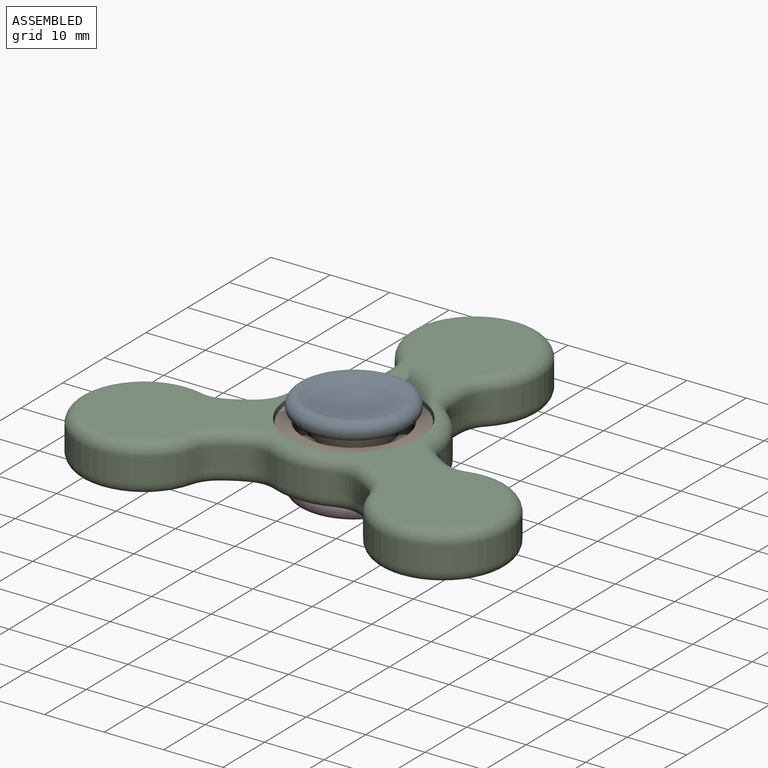
[diagram: assembled view]
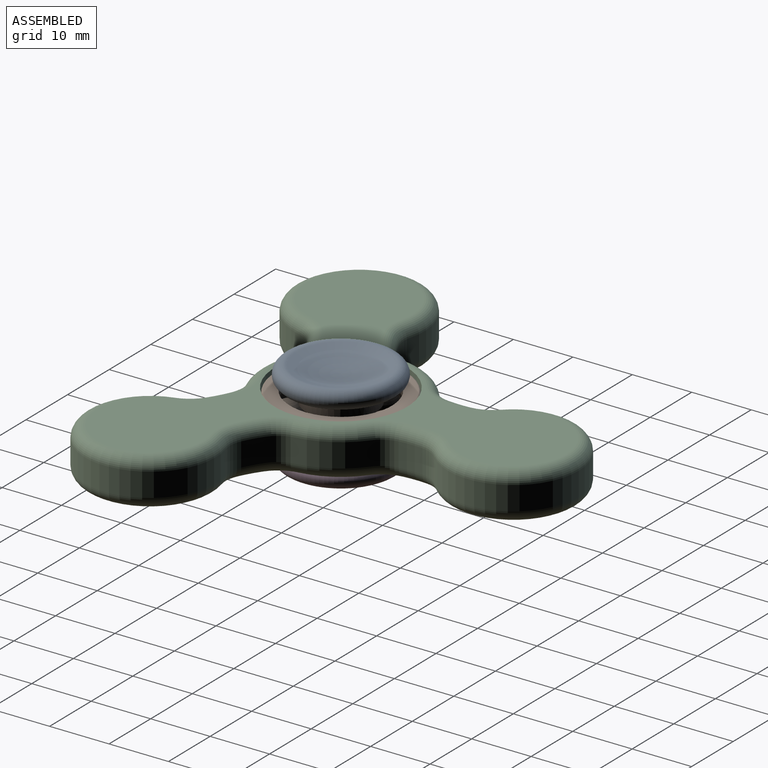
[diagram: assembled view, second angle]
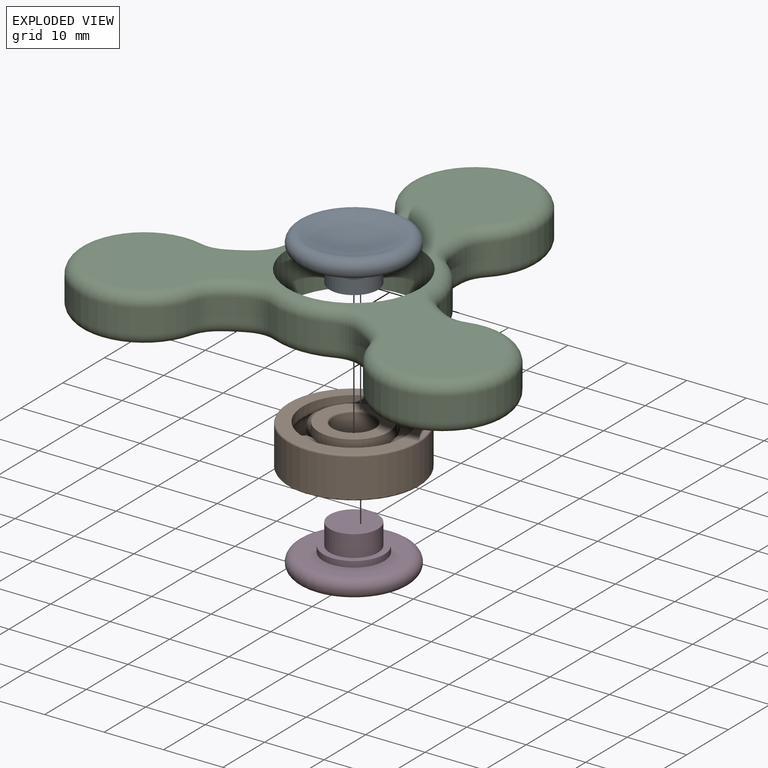
[diagram: exploded view]
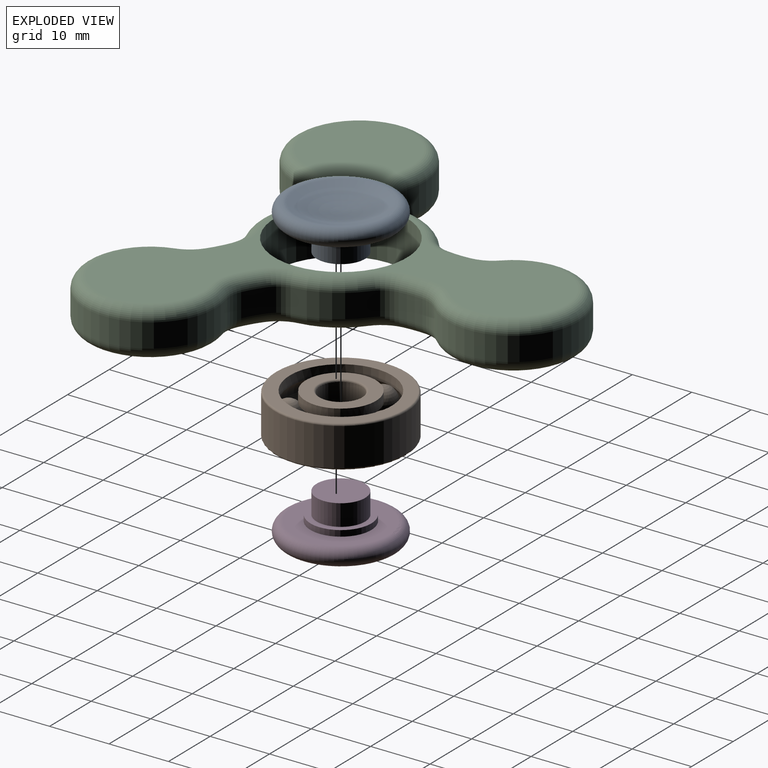
[diagram: exploded view, second angle]
ASSEMBLY  parts=4 mates=3
PART A: 7 faces, bbox 20.6x20.6x7.6 mm
  f0: torus R=8.03mm, axis (0,0,-1), area 292.7mm2, adj f1,f2
  f1: plane 16.05x16.05mm, normal (0,0,-1), area 119.8mm2, adj f0,f3
  f2: sphere r=20.88mm, area 182.2mm2, adj f0
  f3: cylinder r=5.12mm len=10.25mm, axis (0,0,1), area 32.2mm2, adj f1,f4
  f4: plane 10.25x10.25mm, normal (0,0,-1), area 30.3mm2, adj f3,f5
  f5: cylinder r=4.07mm len=8.15mm, axis (0,0,1), area 91.9mm2, adj f4,f6
  f6: plane 8.15x8.15mm, normal (0,0,-1), area 52.2mm2, adj f5
PART B: 29 faces, bbox 23.8x23.8x7 mm
  f0: torus R=3.8mm, axis (0,0,1), area 10.7mm2, adj f1,f2
  f1: cylinder r=3.5mm len=7mm, axis (0,0,1), area 140.7mm2, adj f0,f3
  f2: plane 11.8x11.8mm, normal (0,0,1), area 64mm2, adj f0,f14
  f3: torus R=3.8mm, axis (0,0,1), area 10.7mm2, adj f1,f4
  f4: plane 11.8x11.8mm, normal (0,0,-1), area 64mm2, adj f3,f25
  f5: torus R=10.7mm, axis (0,0,1), area 32.2mm2, adj f6,f7
  f6: cylinder r=11mm len=22mm, axis (0,0,1), area 442.3mm2, adj f5,f8
  f7: plane 21.4x21.4mm, normal (0,0,-1), area 127.3mm2, adj f5,f27
  f8: torus R=10.7mm, axis (0,0,1), area 32.2mm2, adj f6,f9
  f9: plane 21.4x21.4mm, normal (0,0,1), area 127.3mm2, adj f8,f19
  f10: sphere r=2.25mm, area 63.4mm2, adj f14,f15,f19,f23,f25,f26,f27,f28
  f11: sphere r=2.25mm, area 63.4mm2, adj f14,f18,f19,f22,f23,f25,f26,f27
  f12: sphere r=2.25mm, area 63.4mm2, adj f14,f17,f18,f19,f21,f22,f25,f27
  f13: sphere r=2.25mm, area 63.4mm2, adj f14,f16,f17,f19,f20,f21,f25,f27
  f14: cylinder r=5.9mm len=11.8mm, axis (0,0,1), area 63mm2, adj f2,f10,f11,f12,f13,f15,f16,f17
  f15: torus R=7.25mm, axis (0,0,1), area 27.7mm2, adj f10,f14,f24,f25
  f16: torus R=7.25mm, axis (0,0,1), area 27.7mm2, adj f13,f14,f24,f25
  f17: torus R=7.25mm, axis (0,0,1), area 27.7mm2, adj f12,f13,f14,f25
  f18: torus R=7.25mm, axis (0,0,1), area 27.7mm2, adj f11,f12,f14,f25
  f19: cylinder r=8.6mm len=17.2mm, axis (0,0,1), area 91.9mm2, adj f9,f10,f11,f12,f13,f20,f21,f22
  f20: torus R=7.25mm, axis (0,0,1), area 48.1mm2, adj f13,f19,f24,f27
  f21: torus R=7.25mm, axis (0,0,1), area 48.1mm2, adj f12,f13,f19,f27
  f22: torus R=7.25mm, axis (0,0,1), area 48.1mm2, adj f11,f12,f19,f27
  f23: torus R=7.25mm, axis (0,0,1), area 48.1mm2, adj f10,f11,f19,f27
  f24: sphere r=2.25mm, area 63.4mm2, adj f14,f15,f16,f19,f20,f25,f27,f28
  f25: cylinder r=5.9mm len=11.8mm, axis (0,0,1), area 63mm2, adj f4,f10,f11,f12,f13,f15,f16,f17
  f26: torus R=7.25mm, axis (0,0,1), area 27.7mm2, adj f10,f11,f14,f25
  f27: cylinder r=8.6mm len=17.2mm, axis (0,0,1), area 91.9mm2, adj f7,f10,f11,f12,f13,f20,f21,f22
  f28: torus R=7.25mm, axis (0,0,1), area 48.1mm2, adj f10,f19,f24,f27
PART C: 105 faces, bbox 74x8x67.3 mm
  f0: cylinder r=19mm len=4mm, axis (0,1,0), area 15.8mm2, adj f15,f16,f29,f61
  f1: cylinder r=13.65mm len=10.47mm, axis (0,1,0), area 43mm2, adj f16,f17,f33,f65
  f2: cylinder r=19mm len=4mm, axis (0,1,0), area 15.4mm2, adj f17,f18,f37,f69
  f3: cylinder r=11mm len=22mm, axis (0,1,0), area 207.4mm2, adj f18,f19,f41,f73
  f4: cylinder r=19mm len=4mm, axis (0,1,0), area 15.8mm2, adj f19,f20,f45,f70
  f5: cylinder r=13.65mm len=9.06mm, axis (0,1,0), area 43mm2, adj f20,f21,f49,f66
  f6: cylinder r=19mm len=4mm, axis (0,1,0), area 15.4mm2, adj f21,f22,f46,f62
  f7: cylinder r=11mm len=22mm, axis (0,1,0), area 207.4mm2, adj f22,f23,f42,f58
  f8: cylinder r=19mm len=4mm, axis (0,1,0), area 15.8mm2, adj f23,f24,f38,f54
  f9: cylinder r=13.65mm len=9.08mm, axis (0,1,0), area 43mm2, adj f13,f24,f34,f50
  f10: cylinder r=19mm len=4mm, axis (0,1,0), area 15.4mm2, adj f13,f14,f30,f53
  f11: cylinder r=11mm len=22mm, axis (0,1,0), area 207.4mm2, adj f14,f15,f26,f57
  f12: cylinder r=11.15mm len=22.3mm, axis (0,1,0), area 560.5mm2, adj f25,f74
  f13: cylinder r=5mm len=4mm, axis (0,1,0), area 16.1mm2, adj f9,f10,f32,f51
  f14: cylinder r=5mm len=4mm, axis (0,1,0), area 14mm2, adj f10,f11,f28,f55
  f15: cylinder r=5mm len=4mm, axis (0,1,0), area 13.9mm2, adj f0,f11,f27,f59
  f16: cylinder r=5mm len=4mm, axis (0,1,0), area 15.9mm2, adj f0,f1,f31,f63
  f17: cylinder r=5mm len=4mm, axis (0,1,0), area 16.1mm2, adj f1,f2,f35,f67
  f18: cylinder r=5mm len=4mm, axis (0,1,0), area 14mm2, adj f2,f3,f39,f71
  f19: cylinder r=5mm len=4mm, axis (0,1,0), area 13.9mm2, adj f3,f4,f43,f72
  f20: cylinder r=5mm len=4mm, axis (0,1,0), area 15.9mm2, adj f4,f5,f47,f68
  f21: cylinder r=5mm len=4mm, axis (0,1,0), area 16.1mm2, adj f5,f6,f48,f64
  f22: cylinder r=5mm len=4mm, axis (0,1,0), area 14mm2, adj f6,f7,f44,f60
  f23: cylinder r=5mm len=4mm, axis (0,1,0), area 13.9mm2, adj f7,f8,f40,f56
  f24: cylinder r=5mm len=4mm, axis (0,1,0), area 15.9mm2, adj f8,f9,f36,f52
  f25: plane 68.23x61.5mm, normal (0,1,0), area 1053mm2, adj f12,f26,f27,f28,f29,f30,f31,f32
  f26: torus R=9mm, axis (0,-1,0), area 152.2mm2, adj f11,f25,f27,f28
  f27: torus R=7mm, axis (0,-1,0), area 12.5mm2, adj f15,f25,f26,f29
  f28: torus R=7mm, axis (0,-1,0), area 12.6mm2, adj f14,f25,f26,f30
  f29: torus R=21mm, axis (0,-1,0), area 12.9mm2, adj f0,f25,f27,f31
  f30: torus R=21mm, axis (0,-1,0), area 12.5mm2, adj f10,f25,f28,f32
  f31: torus R=7mm, axis (0,-1,0), area 14.3mm2, adj f16,f25,f29,f33
  f32: torus R=7mm, axis (0,-1,0), area 14.5mm2, adj f13,f25,f30,f34
  f33: torus R=11.65mm, axis (0,-1,0), area 32mm2, adj f1,f25,f31,f35
  f34: torus R=11.65mm, axis (0,-1,0), area 32mm2, adj f9,f25,f32,f36
  f35: torus R=7mm, axis (0,-1,0), area 14.5mm2, adj f17,f25,f33,f37
  f36: torus R=7mm, axis (0,-1,0), area 14.3mm2, adj f24,f25,f34,f38
  f37: torus R=21mm, axis (0,-1,0), area 12.5mm2, adj f2,f25,f35,f39
  f38: torus R=21mm, axis (0,-1,0), area 12.9mm2, adj f8,f25,f36,f40
  f39: torus R=7mm, axis (0,-1,0), area 12.6mm2, adj f18,f25,f37,f41
  f40: torus R=7mm, axis (0,-1,0), area 12.5mm2, adj f23,f25,f38,f42
  f41: torus R=9mm, axis (0,-1,0), area 152.2mm2, adj f3,f25,f39,f43
  f42: torus R=9mm, axis (0,-1,0), area 152.2mm2, adj f7,f25,f40,f44
  f43: torus R=7mm, axis (0,-1,0), area 12.5mm2, adj f19,f25,f41,f45
  f44: torus R=7mm, axis (0,-1,0), area 12.6mm2, adj f22,f25,f42,f46
  f45: torus R=21mm, axis (0,-1,0), area 12.9mm2, adj f4,f25,f43,f47
  f46: torus R=21mm, axis (0,-1,0), area 12.5mm2, adj f6,f25,f44,f48
  f47: torus R=7mm, axis (0,-1,0), area 14.3mm2, adj f20,f25,f45,f49
  f48: torus R=7mm, axis (0,-1,0), area 14.5mm2, adj f21,f25,f46,f49
  f49: torus R=11.65mm, axis (0,-1,0), area 32mm2, adj f5,f25,f47,f48
  f50: torus R=11.65mm, axis (0,1,0), area 32mm2, adj f9,f51,f52,f74
  f51: torus R=7mm, axis (0,1,0), area 14.5mm2, adj f13,f50,f53,f74
  f52: torus R=7mm, axis (0,1,0), area 14.3mm2, adj f24,f50,f54,f74
  f53: torus R=21mm, axis (0,1,0), area 12.5mm2, adj f10,f51,f55,f74
  f54: torus R=21mm, axis (0,1,0), area 12.9mm2, adj f8,f52,f56,f74
  f55: torus R=7mm, axis (0,1,0), area 12.6mm2, adj f14,f53,f57,f74
  f56: torus R=7mm, axis (0,1,0), area 12.5mm2, adj f23,f54,f58,f74
  f57: torus R=9mm, axis (0,1,0), area 152.2mm2, adj f11,f55,f59,f74
  f58: torus R=9mm, axis (0,1,0), area 152.2mm2, adj f7,f56,f60,f74
  f59: torus R=7mm, axis (0,1,0), area 12.5mm2, adj f15,f57,f61,f74
  f60: torus R=7mm, axis (0,1,0), area 12.6mm2, adj f22,f58,f62,f74
  f61: torus R=21mm, axis (0,1,0), area 12.9mm2, adj f0,f59,f63,f74
  f62: torus R=21mm, axis (0,1,0), area 12.5mm2, adj f6,f60,f64,f74
  f63: torus R=7mm, axis (0,1,0), area 14.3mm2, adj f16,f61,f65,f74
  f64: torus R=7mm, axis (0,1,0), area 14.5mm2, adj f21,f62,f66,f74
  f65: torus R=11.65mm, axis (0,1,0), area 32mm2, adj f1,f63,f67,f74
  f66: torus R=11.65mm, axis (0,1,0), area 32mm2, adj f5,f64,f68,f74
  f67: torus R=7mm, axis (0,1,0), area 14.5mm2, adj f17,f65,f69,f74
  f68: torus R=7mm, axis (0,1,0), area 14.3mm2, adj f20,f66,f70,f74
  f69: torus R=21mm, axis (0,1,0), area 12.5mm2, adj f2,f67,f71,f74
  f70: torus R=21mm, axis (0,1,0), area 12.9mm2, adj f4,f68,f72,f74
  f71: torus R=7mm, axis (0,1,0), area 12.6mm2, adj f18,f69,f73,f74
  f72: torus R=7mm, axis (0,1,0), area 12.5mm2, adj f19,f70,f73,f74
  f73: torus R=9mm, axis (0,1,0), area 152.2mm2, adj f3,f71,f72,f74
  f74: plane 68.23x61.5mm, normal (0,-1,0), area 1053mm2, adj f12,f50,f51,f52,f53,f54,f55,f56
  f75: plane 22.54x19.5mm, normal (0,-1,0), area 297.4mm2, adj f76,f77,f78,f79,f80,f81,f82,f83
  f76: cylinder r=20.8mm len=4.4mm, axis (0,1,0), area 9.3mm2, adj f75,f78,f82,f84
  f77: cylinder r=20.8mm len=4.4mm, axis (0,1,0), area 9.5mm2, adj f75,f78,f83,f84
  f78: plane 7.71x4.43mm, normal (-0.87,0,0.5), area 39.1mm2, adj f75,f76,f77,f84
  f79: cylinder r=9.2mm len=11.58mm, axis (0,1,0), area 74mm2, adj f75,f81,f83,f84
  f80: cylinder r=9.2mm len=13.64mm, axis (0,1,0), area 75mm2, adj f75,f81,f82,f84
  f81: plane 7.91x4.46mm, normal (0.87,0,-0.49), area 40mm2, adj f75,f79,f80,f84
  f82: cylinder r=6.8mm len=4.4mm, axis (0,1,0), area 20.9mm2, adj f75,f76,f80,f84
  f83: cylinder r=6.8mm len=4.62mm, axis (0,1,0), area 20.8mm2, adj f75,f77,f79,f84
  f84: plane 22.54x19.5mm, normal (0,1,0), area 297.4mm2, adj f76,f77,f78,f79,f80,f81,f82,f83
  f85: plane 20.91x18.4mm, normal (0,1,0), area 297.4mm2, adj f87,f88,f89,f90,f91,f92,f93,f94
  f86: plane 20.91x18.4mm, normal (0,-1,0), area 297.4mm2, adj f87,f88,f89,f90,f91,f92,f93,f94
  f87: cylinder r=20.8mm len=4.4mm, axis (0,1,0), area 9.3mm2, adj f85,f86,f89,f93
  f88: cylinder r=20.8mm len=4.4mm, axis (0,1,0), area 9.5mm2, adj f85,f86,f89,f94
  f89: plane 8.89x4.4mm, normal (0,0,-1), area 39.1mm2, adj f85,f86,f87,f88
  f90: cylinder r=9.2mm len=14.45mm, axis (0,1,0), area 74mm2, adj f85,f86,f92,f94
  f91: cylinder r=9.2mm len=14.57mm, axis (0,1,0), area 75mm2, adj f85,f86,f92,f93
  f92: plane 9.08x4.4mm, normal (-0.01,0,1), area 40mm2, adj f85,f86,f90,f91
  f93: cylinder r=6.8mm len=4.4mm, axis (0,1,0), area 20.9mm2, adj f85,f86,f87,f91
  f94: cylinder r=6.8mm len=4.4mm, axis (0,1,0), area 20.8mm2, adj f85,f86,f88,f90
  f95: plane 22.57x19.46mm, normal (0,1,0), area 297.4mm2, adj f97,f98,f99,f100,f101,f102,f103,f104
  f96: plane 22.57x19.46mm, normal (0,-1,0), area 297.4mm2, adj f97,f98,f99,f100,f101,f102,f103,f104
  f97: cylinder r=20.8mm len=4.4mm, axis (0,1,0), area 9.3mm2, adj f95,f96,f99,f103
  f98: cylinder r=20.8mm len=4.4mm, axis (0,1,0), area 9.5mm2, adj f95,f96,f99,f104
  f99: plane 7.69x4.46mm, normal (0.86,0,0.5), area 39.1mm2, adj f95,f96,f97,f98
  f100: cylinder r=9.2mm len=13.46mm, axis (0,1,0), area 74mm2, adj f95,f96,f102,f104
  f101: cylinder r=9.2mm len=11.61mm, axis (0,1,0), area 75mm2, adj f95,f96,f102,f103
  f102: plane 7.82x4.63mm, normal (-0.86,0,-0.51), area 40mm2, adj f95,f96,f100,f101
  f103: cylinder r=6.8mm len=4.64mm, axis (0,1,0), area 20.9mm2, adj f95,f96,f97,f101
  f104: cylinder r=6.8mm len=4.4mm, axis (0,1,0), area 20.8mm2, adj f95,f96,f98,f100
PART D: same geometry as A
PLACE A t=(0,0,8)mm
PLACE B at identity
PLACE C rot(axis=(1,0,0),90deg) t=(0,0,3.5)mm
PLACE D rot(axis=(1,0,0),180deg) t=(0,0,-1)mm
MATE fastened A.f0 <-> B.f0  axis (0,0,1) through (0,0,7)mm
MATE revolute C.f1 <-> B.f0  axis (0,0,1) through (0,0,3.5)mm
MATE fastened D.f0 <-> B.f0  axis (0,0,-1) through (0,0,0)mm
